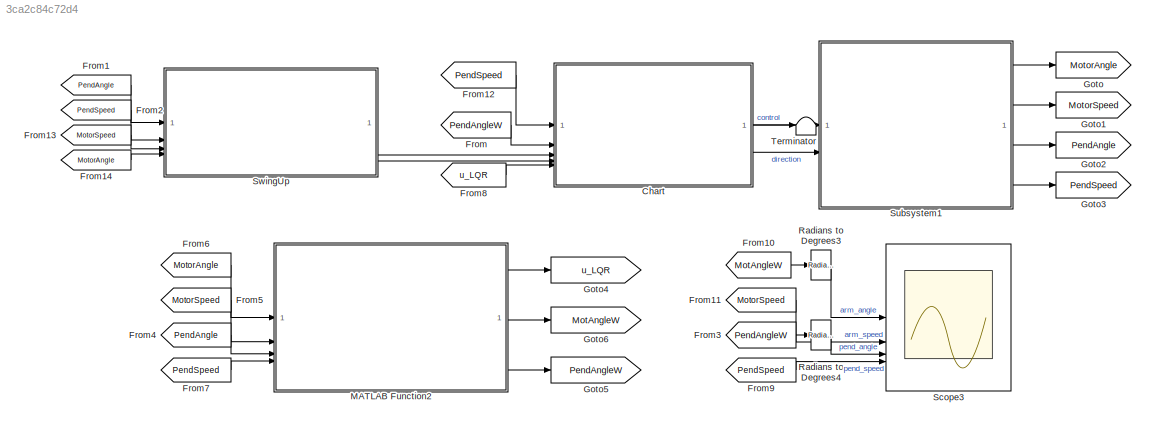
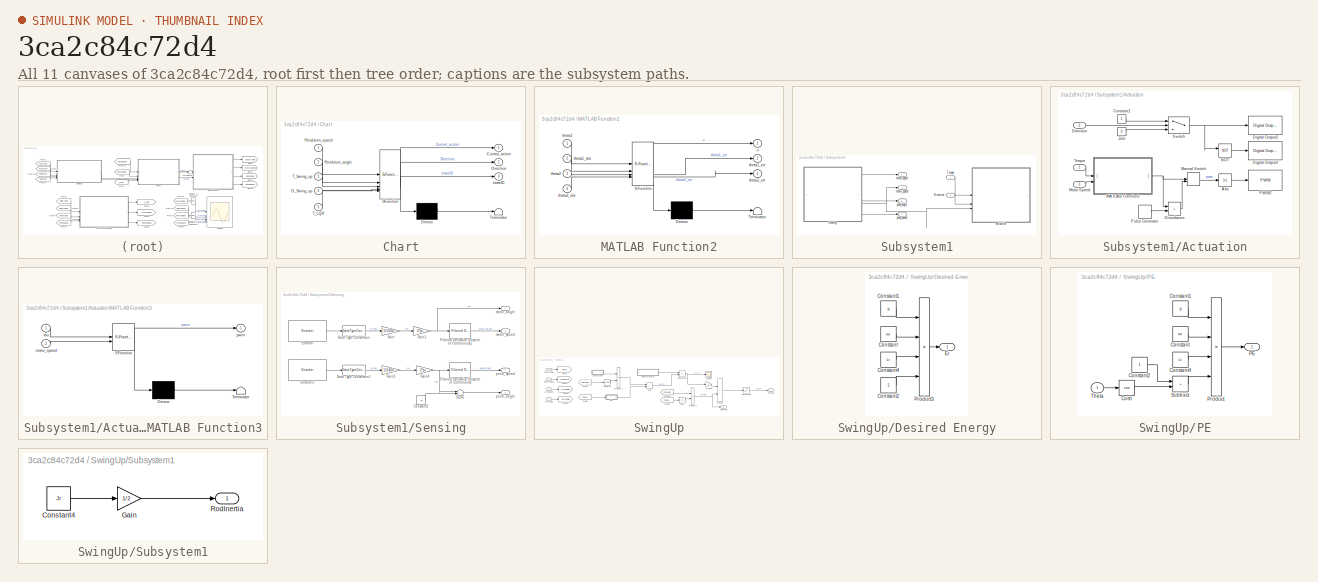
[diagram: thumbnail index - all 11 canvases of the model, root first then tree order]
MODEL slx_3ca2c84c72d4
KIND model
CONFIG AbsTol = auto
CONFIG EnableMultiTasking = on
CONFIG FixedStep = 0.001
CONFIG MaxStep = auto
CONFIG MinStep = auto
CONFIG RelTol = 1e-3
CONFIG SampleTimeConstraint = Unconstrained
CONFIG SolverName = FixedStepAuto
CONFIG StartTime = 0.0
CONFIG StopTime = inf
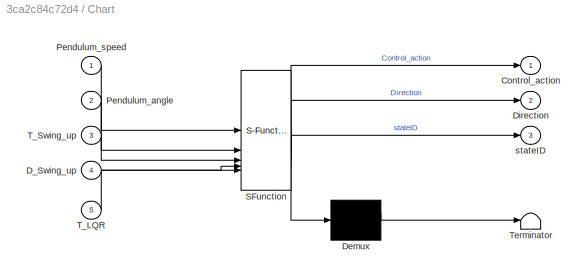
BLOCK [SubSystem] Chart
  ErrorFcn = Stateflow.Translate.translate
  PermitHierarchicalResolution = ExplicitOnly
  PortSchema = {"entries":[{"content":{"sides":[{"content":{"connectorIds":["In1","In3","In2","In4","In5"]},"type":"ConnectorPlacement.EquallySpacedRectSide","uuid":"2e8d9252-ab42-449a-96c3-4e06d664c326"},{"content":{"connectorIds":["Out1","Out3","Out2"],"side":"RIGHT"},"type":"ConnectorPlacement.EquallySpacedRectSide","uuid":"944f291f-ee8a-4402-a6cd-5f62be233e4f"},{"content":{"side":"TOP"},"type":"ConnectorPlac...<+260ch>
  SFBlockType = Chart
  TreatAsAtomicUnit = on
BLOCK [Demux] Chart/ Demux 
  Outputs = 1
BLOCK [S-Function] Chart/ SFunction 
  EnableBusSupport = on
  FunctionName = sf_sfun
  PortCounts = [5 4]
  SFcnIsStateOwnerBlock = off
  SFunctionDeploymentMode = off
  Tag = Stateflow S-Function 3
BLOCK [Terminator] Chart/ Terminator 
BLOCK [Outport] Chart/Control_action
BLOCK [Inport] Chart/D_Swing_up
  Port = 4
BLOCK [Outport] Chart/Direction
  Port = 2
BLOCK [Inport] Chart/Pendulum_angle
  Port = 2
BLOCK [Inport] Chart/Pendulum_speed
BLOCK [Inport] Chart/T_LQR
  Port = 5
BLOCK [Inport] Chart/T_Swing_up
  Port = 3
BLOCK [Outport] Chart/stateID
  Port = 3
BLOCK [From] From
  GotoTag = PendAngleW
BLOCK [From] From1
  GotoTag = PendAngle
BLOCK [From] From10
  GotoTag = MotAngleW
BLOCK [From] From11
  GotoTag = MotorSpeed
BLOCK [From] From12
  GotoTag = PendSpeed
BLOCK [From] From13
  GotoTag = MotorSpeed
BLOCK [From] From14
  GotoTag = MotorAngle
BLOCK [From] From2
  GotoTag = PendSpeed
BLOCK [From] From3
  GotoTag = PendAngleW
BLOCK [From] From4
  GotoTag = PendAngle
BLOCK [From] From5
  GotoTag = MotorSpeed
BLOCK [From] From6
  GotoTag = MotorAngle
BLOCK [From] From7
  GotoTag = PendSpeed
BLOCK [From] From8
  GotoTag = u_LQR
BLOCK [From] From9
  GotoTag = PendSpeed
BLOCK [Goto] Goto
  GotoTag = MotorAngle
BLOCK [Goto] Goto1
  GotoTag = MotorSpeed
BLOCK [Goto] Goto2
  GotoTag = PendAngle
BLOCK [Goto] Goto3
  GotoTag = PendSpeed
BLOCK [Goto] Goto4
  GotoTag = u_LQR
BLOCK [Goto] Goto5
  GotoTag = PendAngleW
BLOCK [Goto] Goto6
  GotoTag = MotAngleW
BLOCK [SubSystem] MATLAB Function2
  ErrorFcn = Stateflow.Translate.translate
  NameLocation = top
  PermitHierarchicalResolution = ExplicitOnly
  SFBlockType = MATLAB Function
  SystemSampleTime = 0.001
  TreatAsAtomicUnit = on
BLOCK [Demux] MATLAB Function2/ Demux 
  Outputs = 1
BLOCK [S-Function] MATLAB Function2/ SFunction 
  EnableBusSupport = on
  FunctionName = sf_sfun
  PortCounts = [4 4]
  SFcnIsStateOwnerBlock = off
  SFunctionDeploymentMode = off
  Tag = Stateflow S-Function 4
BLOCK [Terminator] MATLAB Function2/ Terminator 
BLOCK [Inport] MATLAB Function2/theta1
BLOCK [Inport] MATLAB Function2/theta1_dot
  Port = 2
BLOCK [Outport] MATLAB Function2/theta1_err
  Port = 2
BLOCK [Inport] MATLAB Function2/theta2
  Port = 3
BLOCK [Inport] MATLAB Function2/theta2_dot
  Port = 4
BLOCK [Outport] MATLAB Function2/theta2_err
  Port = 3
BLOCK [Outport] MATLAB Function2/u
BLOCK [Reference] Radians to Degrees3  REF=simulink_extras/Transformations/Radians
to Degrees
  SourceBlock = simulink_extras/Transformations/Radians\nto Degrees
  SourceType = RadiansToDegrees
BLOCK [Reference] Radians to Degrees4  REF=simulink_extras/Transformations/Radians
to Degrees
  SourceBlock = simulink_extras/Transformations/Radians\nto Degrees
  SourceType = RadiansToDegrees
BLOCK [Scope] Scope3
  Floating = off
  NumInputPorts = 4
  ScopeSpecificationString = Simulink.scopes.TimeScopeBlockCfg('CurrentConfiguration', extmgr.ConfigurationSet(extmgr.Configuration('Core','General UI',true),extmgr.Configuration('Core','Source UI',true),extmgr.Configuration('Sources','WiredSimulink',true,'DataLoggingVariableName','ScopeData3'),extmgr.Configuration('Visuals','Time Domain',true,'SerializedDisplays',{struct('MinYLimReal','-224.83125','MaxYLimReal','224.98125','...<+1677ch>
BLOCK [SubSystem] Subsystem1
BLOCK [SubSystem] Subsystem1/Actuation
BLOCK [Abs] Subsystem1/Actuation/Abs
  SaturateOnIntegerOverflow = off
BLOCK [Constant] Subsystem1/Actuation/Constant1
BLOCK [Reference] Subsystem1/Actuation/Digital Output2  REF=arduinolib/Digital Output
  SourceBlock = arduinolib/Digital Output
  SourceType = Arduino Digital Output
BLOCK [Reference] Subsystem1/Actuation/Digital Output3  REF=arduinolib/Digital Output
  SourceBlock = arduinolib/Digital Output
  SourceType = Arduino Digital Output
BLOCK [Inport] Subsystem1/Actuation/Direction
  Port = 2
BLOCK [Sum] Subsystem1/Actuation/Disturbance
  IconShape = rectangular
BLOCK [SubSystem] Subsystem1/Actuation/MATLAB Function3
  ErrorFcn = Stateflow.Translate.translate
  PermitHierarchicalResolution = ExplicitOnly
  SFBlockType = MATLAB Function
  TreatAsAtomicUnit = on
BLOCK [Demux] Subsystem1/Actuation/MATLAB Function3/ Demux 
  Outputs = 1
BLOCK [S-Function] Subsystem1/Actuation/MATLAB Function3/ SFunction 
  EnableBusSupport = on
  FunctionName = sf_sfun
  PortCounts = [2 2]
  SFcnIsStateOwnerBlock = off
  SFunctionDeploymentMode = off
  Tag = Stateflow S-Function 5
BLOCK [Terminator] Subsystem1/Actuation/MATLAB Function3/ Terminator 
BLOCK [Inport] Subsystem1/Actuation/MATLAB Function3/motor_speed
  Port = 2
BLOCK [Outport] Subsystem1/Actuation/MATLAB Function3/pwm
BLOCK [Inport] Subsystem1/Actuation/MATLAB Function3/tau
BLOCK [ManualSwitch] Subsystem1/Actuation/Manual Switch
  CurrentSetting = 0
BLOCK [Inport] Subsystem1/Actuation/Motor Speed
  Port = 3
BLOCK [Logic] Subsystem1/Actuation/NOT
  AllPortsSameDT = off
  IconShape = distinctive
  Operator = NOT
  OutDataTypeStr = boolean
BLOCK [Reference] Subsystem1/Actuation/PWM2  REF=arduinolib/PWM
  SourceBlock = arduinolib/PWM
  SourceType = Arduino PWM
BLOCK [DiscretePulseGenerator] Subsystem1/Actuation/Pulse Generator
  Amplitude = 160
  Period = 500
  PhaseDelay = 2
  PulseType = Time based
  PulseWidth = 0.05
BLOCK [Switch] Subsystem1/Actuation/Switch
  Criteria = u2 > Threshold
  InputSameDT = off
  SaturateOnIntegerOverflow = off
BLOCK [Inport] Subsystem1/Actuation/Torque
BLOCK [Constant] Subsystem1/Actuation/Zero
  OutDataTypeStr = Inherit: Inherit via back propagation
  Value = 0
BLOCK [Inport] Subsystem1/Direction
  Port = 2
BLOCK [SubSystem] Subsystem1/Sensing
BLOCK [Constant] Subsystem1/Sensing/Constant2
  Value = -pi
BLOCK [DataTypeConversion] Subsystem1/Sensing/Data Type Conversion
  OutDataTypeStr = double
  RndMeth = Floor
  SaturateOnIntegerOverflow = off
BLOCK [DataTypeConversion] Subsystem1/Sensing/Data Type Conversion1
  OutDataTypeStr = double
  RndMeth = Floor
  SaturateOnIntegerOverflow = off
BLOCK [Reference] Subsystem1/Sensing/Encoder  REF=arduinosensorlib/Encoder
  SourceBlock = arduinosensorlib/Encoder
  SourceType = Arduino Rotary Encoder
BLOCK [Reference] Subsystem1/Sensing/Encoder1  REF=arduinosensorlib/Encoder
  SourceBlock = arduinosensorlib/Encoder
  SourceType = Arduino Rotary Encoder
BLOCK [Reference] Subsystem1/Sensing/Filtered Derivative (Discrete or Continuous)  REF=eeGeneralControl/Filtered Derivative
(Discrete or Continuous)
  LibrarySourceBlock = ee_sl_lib/General Control/Filtered Derivative\n(Discrete or Continuous)
  SourceBlock = eeGeneralControl/Filtered Derivative\n(Discrete or Continuous)
  SourceType = Filtered Derivative (Discrete or Continuous)
BLOCK [Reference] Subsystem1/Sensing/Filtered Derivative (Discrete or Continuous)1  REF=eeGeneralControl/Filtered Derivative
(Discrete or Continuous)
  LibrarySourceBlock = ee_sl_lib/General Control/Filtered Derivative\n(Discrete or Continuous)
  SourceBlock = eeGeneralControl/Filtered Derivative\n(Discrete or Continuous)
  SourceType = Filtered Derivative (Discrete or Continuous)
BLOCK [Gain] Subsystem1/Sensing/Gain
  Gain = 1/1500
BLOCK [Gain] Subsystem1/Sensing/Gain1
  Gain = 2*pi
BLOCK [Gain] Subsystem1/Sensing/Gain3
  Gain = 1/2400
BLOCK [Gain] Subsystem1/Sensing/Gain4
  Gain = 2*pi
BLOCK [Sum] Subsystem1/Sensing/Sum2
  Inputs = |++
BLOCK [Outport] Subsystem1/Sensing/motor_angle
BLOCK [Outport] Subsystem1/Sensing/motor_speed
  Port = 2
BLOCK [Outport] Subsystem1/Sensing/pend_angle
  Port = 3
BLOCK [Outport] Subsystem1/Sensing/pend_speed
  Port = 4
BLOCK [Inport] Subsystem1/Torque
BLOCK [Outport] Subsystem1/motor_angle
BLOCK [Outport] Subsystem1/motor_speed
  Port = 2
BLOCK [Outport] Subsystem1/pend_angle
  Port = 3
BLOCK [Outport] Subsystem1/pend_speed
  Port = 4
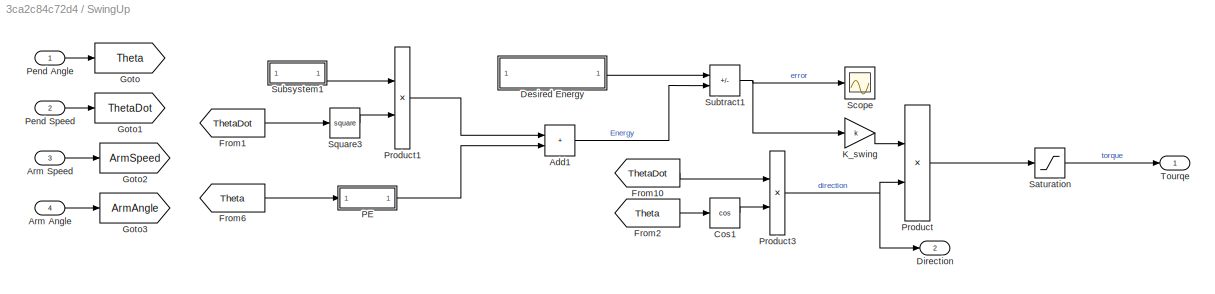
BLOCK [SubSystem] SwingUp
BLOCK [Sum] SwingUp/Add1
  IconShape = rectangular
BLOCK [Inport] SwingUp/Arm Angle
  Port = 4
BLOCK [Inport] SwingUp/Arm Speed
  Port = 3
BLOCK [Trigonometry] SwingUp/Cos1
  Operator = cos
BLOCK [SubSystem] SwingUp/Desired Energy
BLOCK [Constant] SwingUp/Desired Energy/Constant
  Value = mr
BLOCK [Constant] SwingUp/Desired Energy/Constant1
  Value = g
BLOCK [Constant] SwingUp/Desired Energy/Constant2
  Value = 2
BLOCK [Constant] SwingUp/Desired Energy/Constant4
  Value = Lr
BLOCK [Outport] SwingUp/Desired Energy/Er
BLOCK [Product] SwingUp/Desired Energy/Product3
  Inputs = 4
BLOCK [Outport] SwingUp/Direction
  Port = 2
BLOCK [From] SwingUp/From1
  GotoTag = ThetaDot
BLOCK [From] SwingUp/From10
  GotoTag = ThetaDot
BLOCK [From] SwingUp/From2
  GotoTag = Theta
BLOCK [From] SwingUp/From6
  GotoTag = Theta
BLOCK [Goto] SwingUp/Goto
  GotoTag = Theta
BLOCK [Goto] SwingUp/Goto1
  GotoTag = ThetaDot
BLOCK [Goto] SwingUp/Goto2
  GotoTag = ArmSpeed
BLOCK [Goto] SwingUp/Goto3
  GotoTag = ArmAngle
BLOCK [Gain] SwingUp/K_swing
  Gain = k
BLOCK [SubSystem] SwingUp/PE
BLOCK [Constant] SwingUp/PE/Constant
  Value = mr
BLOCK [Constant] SwingUp/PE/Constant1
  Value = g
BLOCK [Constant] SwingUp/PE/Constant2
BLOCK [Constant] SwingUp/PE/Constant4
  Value = Lr
BLOCK [Trigonometry] SwingUp/PE/Cosh
  Operator = cos
BLOCK [Outport] SwingUp/PE/PE
BLOCK [Product] SwingUp/PE/Product
  Inputs = 4
BLOCK [Sum] SwingUp/PE/Subtract
  IconShape = rectangular
BLOCK [Inport] SwingUp/PE/Theta
BLOCK [Inport] SwingUp/Pend Angle
BLOCK [Inport] SwingUp/Pend Speed
  Port = 2
BLOCK [Product] SwingUp/Product
BLOCK [Product] SwingUp/Product1
BLOCK [Product] SwingUp/Product3
BLOCK [Saturate] SwingUp/Saturation
  LowerLimit = -3
  UpperLimit = 3
BLOCK [Scope] SwingUp/Scope
  Floating = off
  NumInputPorts = 1
  ScopeSpecificationString = Simulink.scopes.TimeScopeBlockCfg('CurrentConfiguration', extmgr.ConfigurationSet(extmgr.Configuration('Core','General UI',true),extmgr.Configuration('Core','Source UI',true),extmgr.Configuration('Sources','WiredSimulink',true,'DataLoggingVariableName','ScopeData2'),extmgr.Configuration('Visuals','Time Domain',true,'SerializedDisplays',{struct('MinYLimReal','-0.01812','MaxYLimReal','0.02705','YLab...<+1507ch>
BLOCK [Math] SwingUp/Square3
  Operator = square
BLOCK [SubSystem] SwingUp/Subsystem1
BLOCK [Constant] SwingUp/Subsystem1/Constant4
  Value = Jr
BLOCK [Gain] SwingUp/Subsystem1/Gain
  Gain = 1/2
BLOCK [Outport] SwingUp/Subsystem1/RodInertia
BLOCK [Sum] SwingUp/Subtract1
  IconShape = rectangular
  Inputs = +-
BLOCK [Outport] SwingUp/Tourqe
BLOCK [Terminator] Terminator
LINE Chart:1 -> Subsystem1:1
LINE Chart:2 -> Subsystem1:2
LINE Chart:3 -> Terminator:1
LINE From10:1 -> Radians to Degrees3:1
LINE From11:1 -> Scope3:2
LINE From12:1 -> Chart:1
LINE From13:1 -> SwingUp:3
LINE From14:1 -> SwingUp:4
LINE From1:1 -> SwingUp:1
LINE From2:1 -> SwingUp:2
LINE From3:1 -> Radians to Degrees4:1
LINE From4:1 -> MATLAB Function2:3
LINE From5:1 -> MATLAB Function2:2
LINE From6:1 -> MATLAB Function2:1
LINE From7:1 -> MATLAB Function2:4
LINE From8:1 -> Chart:5
LINE From9:1 -> Scope3:4
LINE From:1 -> Chart:2
LINE MATLAB Function2:1 -> Goto4:1
LINE MATLAB Function2:2 -> Goto6:1
LINE MATLAB Function2:3 -> Goto5:1
LINE Radians to Degrees3:1 -> Scope3:1
LINE Radians to Degrees4:1 -> Scope3:3
LINE Subsystem1/Actuation/Abs:1 -> Subsystem1/Actuation/PWM2:1
LINE Subsystem1/Actuation/Constant1:1 -> Subsystem1/Actuation/Switch:1
LINE Subsystem1/Actuation/Direction:1 -> Subsystem1/Actuation/Switch:2
LINE Subsystem1/Actuation/Disturbance:1 -> Subsystem1/Actuation/Manual Switch:2
NET Subsystem1/Actuation/MATLAB Function3:1 -> Subsystem1/Actuation/Disturbance:1, Subsystem1/Actuation/Manual Switch:1
LINE Subsystem1/Actuation/Manual Switch:1 -> Subsystem1/Actuation/Abs:1
LINE Subsystem1/Actuation/Motor Speed:1 -> Subsystem1/Actuation/MATLAB Function3:2
LINE Subsystem1/Actuation/NOT:1 -> Subsystem1/Actuation/Digital Output3:1
LINE Subsystem1/Actuation/Pulse Generator:1 -> Subsystem1/Actuation/Disturbance:2
NET Subsystem1/Actuation/Switch:1 -> Subsystem1/Actuation/Digital Output2:1, Subsystem1/Actuation/NOT:1
LINE Subsystem1/Actuation/Torque:1 -> Subsystem1/Actuation/MATLAB Function3:1
LINE Subsystem1/Actuation/Zero:1 -> Subsystem1/Actuation/Switch:3
LINE Subsystem1/Direction:1 -> Subsystem1/Actuation:2
LINE Subsystem1/Sensing/Constant2:1 -> Subsystem1/Sensing/Sum2:2
LINE Subsystem1/Sensing/Data Type Conversion1:1 -> Subsystem1/Sensing/Gain3:1
LINE Subsystem1/Sensing/Data Type Conversion:1 -> Subsystem1/Sensing/Gain:1
LINE Subsystem1/Sensing/Encoder1:1 -> Subsystem1/Sensing/Data Type Conversion1:1
LINE Subsystem1/Sensing/Encoder:1 -> Subsystem1/Sensing/Data Type Conversion:1
LINE Subsystem1/Sensing/Filtered Derivative (Discrete or Continuous)1:1 -> Subsystem1/Sensing/motor_speed:1
LINE Subsystem1/Sensing/Filtered Derivative (Discrete or Continuous):1 -> Subsystem1/Sensing/pend_speed:1
NET Subsystem1/Sensing/Gain1:1 -> Subsystem1/Sensing/Filtered Derivative (Discrete or Continuous)1:1, Subsystem1/Sensing/motor_angle:1
LINE Subsystem1/Sensing/Gain3:1 -> Subsystem1/Sensing/Gain4:1
NET Subsystem1/Sensing/Gain4:1 -> Subsystem1/Sensing/Filtered Derivative (Discrete or Continuous):1, Subsystem1/Sensing/Sum2:1
LINE Subsystem1/Sensing/Gain:1 -> Subsystem1/Sensing/Gain1:1
LINE Subsystem1/Sensing/Sum2:1 -> Subsystem1/Sensing/pend_angle:1
LINE Subsystem1/Sensing:1 -> Subsystem1/motor_angle:1
NET Subsystem1/Sensing:2 -> Subsystem1/Actuation:3, Subsystem1/motor_speed:1
LINE Subsystem1/Sensing:3 -> Subsystem1/pend_angle:1
LINE Subsystem1/Sensing:4 -> Subsystem1/pend_speed:1
LINE Subsystem1/Torque:1 -> Subsystem1/Actuation:1
LINE Subsystem1:1 -> Goto:1
LINE Subsystem1:2 -> Goto1:1
LINE Subsystem1:3 -> Goto2:1
LINE Subsystem1:4 -> Goto3:1
LINE SwingUp/Add1:1 -> SwingUp/Subtract1:2
LINE SwingUp/Arm Angle:1 -> SwingUp/Goto3:1
LINE SwingUp/Arm Speed:1 -> SwingUp/Goto2:1
LINE SwingUp/Cos1:1 -> SwingUp/Product3:2
LINE SwingUp/Desired Energy/Constant1:1 -> SwingUp/Desired Energy/Product3:1
LINE SwingUp/Desired Energy/Constant2:1 -> SwingUp/Desired Energy/Product3:4
LINE SwingUp/Desired Energy/Constant4:1 -> SwingUp/Desired Energy/Product3:3
LINE SwingUp/Desired Energy/Constant:1 -> SwingUp/Desired Energy/Product3:2
LINE SwingUp/Desired Energy/Product3:1 -> SwingUp/Desired Energy/Er:1
LINE SwingUp/Desired Energy:1 -> SwingUp/Subtract1:1
LINE SwingUp/From10:1 -> SwingUp/Product3:1
LINE SwingUp/From1:1 -> SwingUp/Square3:1
LINE SwingUp/From2:1 -> SwingUp/Cos1:1
LINE SwingUp/From6:1 -> SwingUp/PE:1
LINE SwingUp/K_swing:1 -> SwingUp/Product:1
LINE SwingUp/PE/Constant1:1 -> SwingUp/PE/Product:1
LINE SwingUp/PE/Constant2:1 -> SwingUp/PE/Subtract:1
LINE SwingUp/PE/Constant4:1 -> SwingUp/PE/Product:3
LINE SwingUp/PE/Constant:1 -> SwingUp/PE/Product:2
LINE SwingUp/PE/Cosh:1 -> SwingUp/PE/Subtract:2
LINE SwingUp/PE/Product:1 -> SwingUp/PE/PE:1
LINE SwingUp/PE/Subtract:1 -> SwingUp/PE/Product:4
LINE SwingUp/PE/Theta:1 -> SwingUp/PE/Cosh:1
LINE SwingUp/PE:1 -> SwingUp/Add1:2
LINE SwingUp/Pend Angle:1 -> SwingUp/Goto:1
LINE SwingUp/Pend Speed:1 -> SwingUp/Goto1:1
LINE SwingUp/Product1:1 -> SwingUp/Add1:1
NET SwingUp/Product3:1 -> SwingUp/Direction:1, SwingUp/Product:2
LINE SwingUp/Product:1 -> SwingUp/Saturation:1
LINE SwingUp/Saturation:1 -> SwingUp/Tourqe:1
LINE SwingUp/Square3:1 -> SwingUp/Product1:2
LINE SwingUp/Subsystem1/Constant4:1 -> SwingUp/Subsystem1/Gain:1
LINE SwingUp/Subsystem1/Gain:1 -> SwingUp/Subsystem1/RodInertia:1
LINE SwingUp/Subsystem1:1 -> SwingUp/Product1:1
NET SwingUp/Subtract1:1 -> SwingUp/K_swing:1, SwingUp/Scope:1
LINE SwingUp:1 -> Chart:3
LINE SwingUp:2 -> Chart:4
note: NET lines group one-source signal fan-out (src -> all destinations, sorted); 1:1 wires keep LINE
CHART Chart states=3 transitions=6
  STATE_LABEL 'Swing_mode\nentry:\nControl_action = 0\nDirection = 0\nduring:\nstateID = 1\nif after(0.2,sec)\n    Control_action = T_Swing_up\n    Direction = sign(D_Swing_up)\nend'
  STATE_LABEL 'LQR_mode\nentry:\nControl_action = T_LQR\nDirection = sign(T_LQR)\nduring:\nstateID = 2\nControl_action = T_LQR\nDirection = sign(T_LQR)\n'
  STATE_LABEL 'Recovery_mode\nentry:\nstateID = 3\nControl_action = 0\nDirection = 0\nduring:\nControl_action = 0\nDirection = 0\n'
CHART MATLAB Function2 states=1 transitions=1
  STATE_LABEL 'eML_blk_kernel()'
  STATE_LABEL 'SCRIPT:\nfunction [u, theta1_err, theta2_err]= LQR_controller(theta1, theta1_dot, theta2, theta2_dot)\n% LQR stabilizer for Furuta pendulum\n% Upright at theta2 = 0 (or 2*pi)\n% No swing-up, no memory\n\n% LQR gain\nK_ = [-0.316227766016342,-0.203276132698185,5.614675633123943,0.557548956161459];\n% K_ = [-0.447213595498889,-0.581166673163959,14.897266885540670,1.536621079477820];\n\n% Step 1: wrap to [0, 2...<+393ch>'
CHART Subsystem1/Actuation/MATLAB Function3 states=1 transitions=1
  STATE_LABEL 'eML_blk_kernel()'
  STATE_LABEL 'SCRIPT:\nfunction pwm = torque_to_pwm(tau, motor_speed)\n\n% === Motor parameters (estimated) ===\nKt = 12*60/(2*pi*250);       % Nm/A\nKe = Kt;       % V/(rad/s)\nR  =  5.8466;        % Ohms\nVmax = 12;       % Supply voltage\n\n% === Torque → Voltage ===\nV = (tau / Kt) * R + Ke * motor_speed;\n\n% === Voltage → PWM ===\npwm = 255 * V / Vmax;\n\n% === Saturation ===\npwm = max(min(pwm,210),-210);\n\nend\n'
CHART  states=0 transitions=0
CHART  states=0 transitions=0
CHART  states=0 transitions=0
